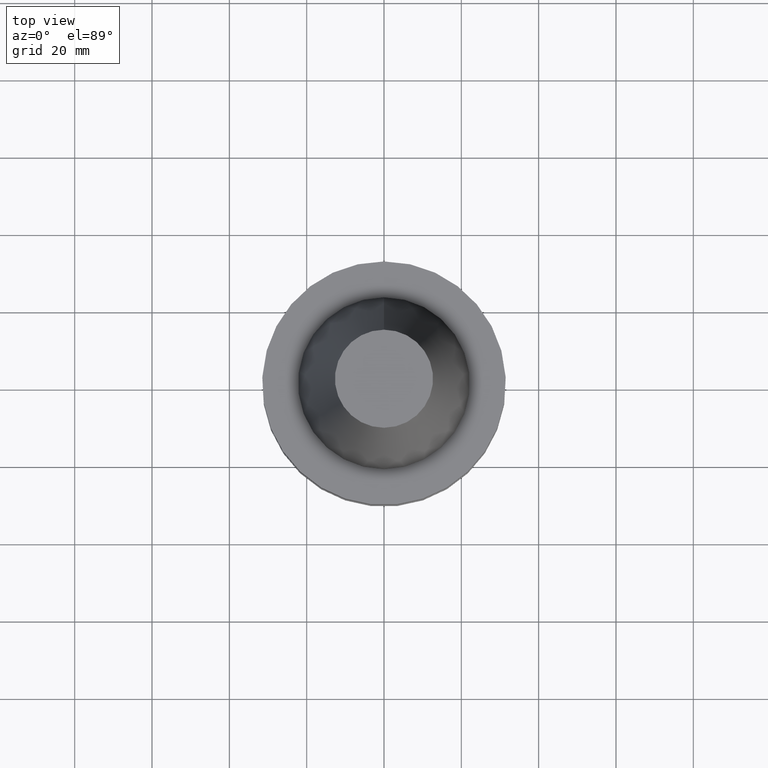
[diagram: clean part render]
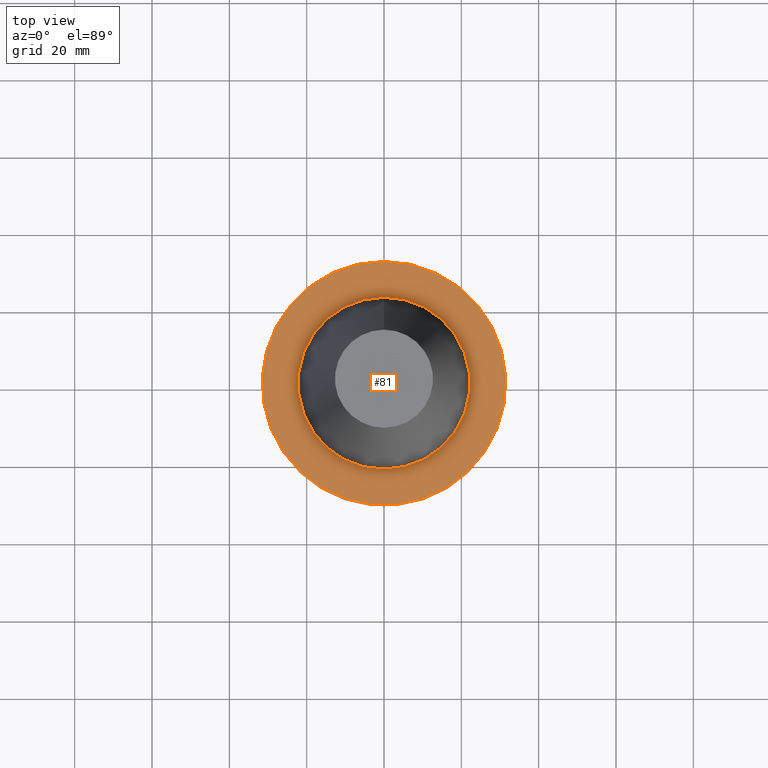
[diagram: same view with one face highlighted and labeled with its STEP entity id]
A machine part, top view. The second image highlights one B-rep face of the part: STEP entity #81.
In plain terms, the highlighted planar face has unit normal (-0, -0, 1).
Its self-contained STEP definition (entity closure, byte-faithful):
#69=EDGE_CURVE('Unnamed[1]',#174,#174,#175,.T.);
#81=ADVANCED_FACE('Unnamed[1]',(#192,#193),#194,.T.);
#99=EDGE_CURVE('Unnamed[1]',#222,#222,#223,.T.);
#174=VERTEX_POINT('',#312);
#175=CIRCLE('',#313,22.225);
#192=FACE_OUTER_BOUND('',#335,.T.);
#193=FACE_BOUND('',#336,.T.);
#194=PLANE('',#337);
#222=VERTEX_POINT('',#372);
#223=CIRCLE('',#373,31.4999999999997);
#312=CARTESIAN_POINT('',(6.12323399573622E-017,22.2250000000001,-0.999999999999912));
#313=AXIS2_PLACEMENT_3D('',#466,#467,#468);
#335=EDGE_LOOP('',(#485));
#336=EDGE_LOOP('',(#486));
#337=AXIS2_PLACEMENT_3D('',#487,#488,#489);
#372=CARTESIAN_POINT('',(6.12323399573568E-017,31.4999999999997,-0.999999999999825));
#373=AXIS2_PLACEMENT_3D('',#520,#521,#522);
#466=CARTESIAN_POINT('',(6.12323399573616E-017,4.02345353025828E-014,-0.999999999999901));
#467=DIRECTION('',(6.12323399573677E-017,-5.47979376128762E-016,-1.0));
#468=DIRECTION('',(2.87269067179714E-032,1.0,-5.47979376128762E-016));
#485=ORIENTED_EDGE('',*,*,#99,.F.);
#486=ORIENTED_EDGE('',*,*,#69,.T.);
#487=CARTESIAN_POINT('',(6.12323399573595E-017,26.8624999999999,-0.999999999999869));
#488=DIRECTION('',(-6.12323399573677E-017,-9.35138060429241E-015,1.0));
#489=DIRECTION('',(5.77434068963536E-031,-1.0,-9.35138060429241E-015));
#520=CARTESIAN_POINT('',(6.12323399573563E-017,4.02345353025828E-014,-0.999999999999815));
#521=DIRECTION('',(6.12323399573677E-017,-5.4797937612879E-016,-1.0));
#522=DIRECTION('',(2.8726906717977E-032,1.0,-5.4797937612879E-016));